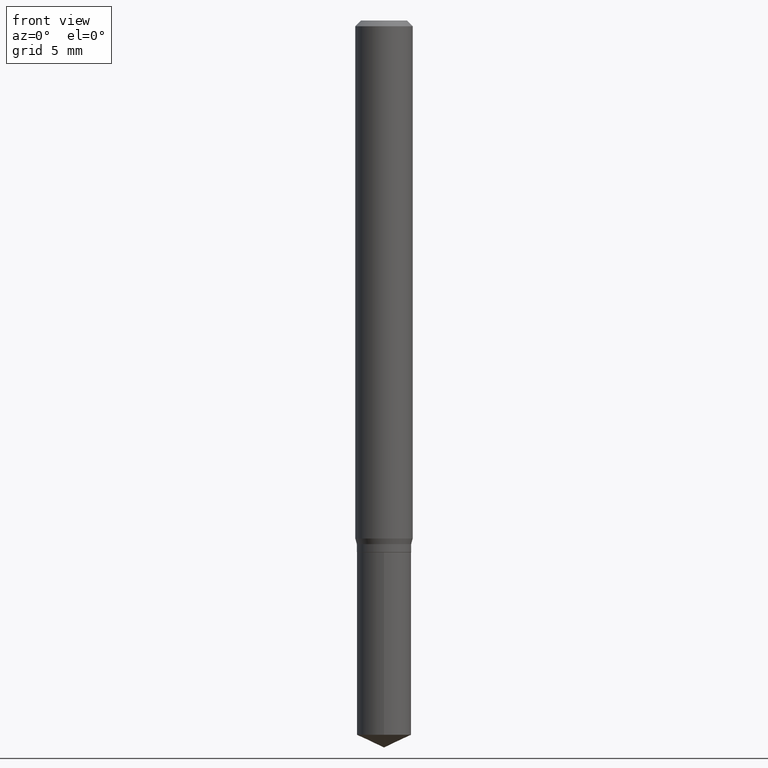
[diagram: clean part render]
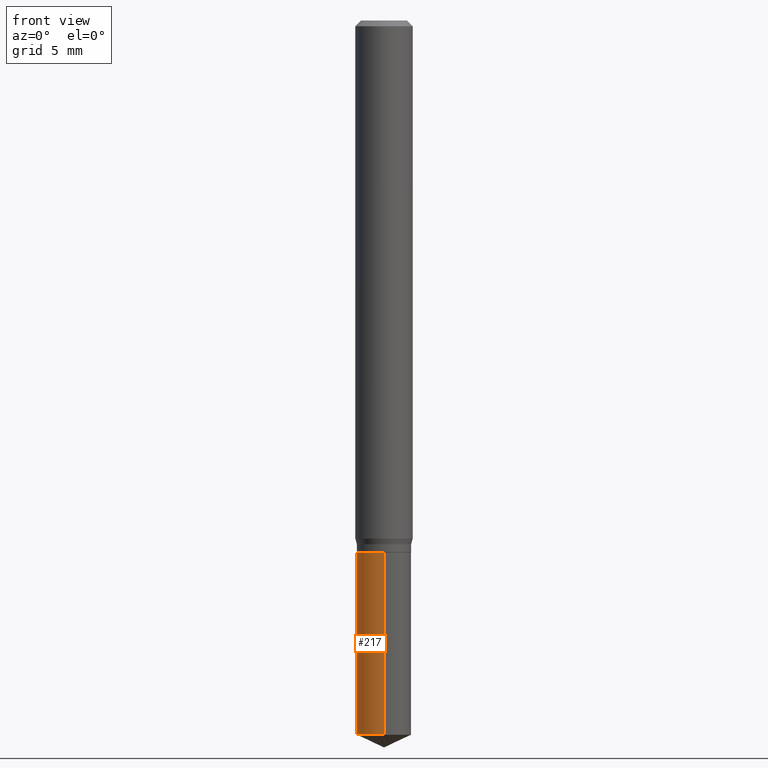
[diagram: same view with one face highlighted and labeled with its STEP entity id]
A machine part, front view. The second image highlights one B-rep face of the part: STEP entity #217.
In plain terms, the highlighted cylindrical surface (edge-blend (fillet) strip) has radius 1.4199 mm, axis along (-0, 0, 1).
Its self-contained STEP definition (entity closure, byte-faithful):
#21 = CYLINDRICAL_SURFACE ( 'NONE', #396, 0.05589999999999999830 ) ;
#48 = CARTESIAN_POINT ( 'NONE',  ( -3.903476136826355269E-16, -0.05590000000000382857, -1.094499999999999806 ) ) ;
#51 = EDGE_CURVE ( 'NONE', #156, #343, #213, .T. ) ;
#67 = CARTESIAN_POINT ( 'NONE',  ( 3.971933892899227145E-16, 0.05589999999999617497, -1.094500000000000028 ) ) ;
#104 = ORIENTED_EDGE ( 'NONE', *, *, #468, .F. ) ;
#105 = CARTESIAN_POINT ( 'NONE',  ( -3.903476136826355269E-16, -0.05590000000000382857, -1.094499999999999806 ) ) ;
#106 = VERTEX_POINT ( 'NONE', #356 ) ;
#119 = DIRECTION ( 'NONE',  ( -6.982962677686266711E-15, -1.000000000000000000, 4.887026822297430217E-15 ) ) ;
#124 = DIRECTION ( 'NONE',  ( -2.445458899330790108E-29, 3.491495526022433205E-15, 1.000000000000000000 ) ) ;
#154 = DIRECTION ( 'NONE',  ( -2.445458899330790108E-29, 3.491495526022433205E-15, 1.000000000000000000 ) ) ;
#156 = VERTEX_POINT ( 'NONE', #465 ) ;
#159 = AXIS2_PLACEMENT_3D ( 'NONE', #243, #154, #119 ) ;
#175 = DIRECTION ( 'NONE',  ( -2.445458899330790108E-29, 3.491495526022433205E-15, 1.000000000000000000 ) ) ;
#204 = FACE_OUTER_BOUND ( 'NONE', #434, .T. ) ;
#206 = DIRECTION ( 'NONE',  ( -2.445458899330790108E-29, 3.491495526022433599E-15, 1.000000000000000000 ) ) ;
#212 = LINE ( 'NONE', #67, #254 ) ;
#213 = CIRCLE ( 'NONE', #159, 0.05589999999999999830 ) ;
#217 = ADVANCED_FACE ( 'NONE', ( #204 ), #21, .T. ) ;
#223 = VERTEX_POINT ( 'NONE', #105 ) ;
#243 = CARTESIAN_POINT ( 'NONE',  ( 3.594917108064294663E-29, -5.132599518001554122E-15, -1.470033401909135673 ) ) ;
#253 = DIRECTION ( 'NONE',  ( -6.982962677686266711E-15, -1.000000000000000000, 2.443513411148715109E-15 ) ) ;
#254 = VECTOR ( 'NONE', #292, 39.37007874015748143 ) ;
#268 = DIRECTION ( 'NONE',  ( -6.982962677686266711E-15, -1.000000000000000000, 2.443513411148715109E-15 ) ) ;
#292 = DIRECTION ( 'NONE',  ( -2.445458899330790108E-29, 3.491495526022433599E-15, 1.000000000000000000 ) ) ;
#300 = EDGE_CURVE ( 'NONE', #156, #106, #212, .T. ) ;
#306 = AXIS2_PLACEMENT_3D ( 'NONE', #360, #124, #268 ) ;
#343 = VERTEX_POINT ( 'NONE', #373 ) ;
#356 = CARTESIAN_POINT ( 'NONE',  ( 3.971933892899319836E-16, 0.05589999999999617497, -1.094500000000000028 ) ) ;
#359 = CARTESIAN_POINT ( 'NONE',  ( 2.676565608369631794E-29, -3.821426325363822773E-15, -1.094499999999999806 ) ) ;
#360 = CARTESIAN_POINT ( 'NONE',  ( 2.676565608369631794E-29, -3.821426325363822773E-15, -1.094499999999999806 ) ) ;
#373 = CARTESIAN_POINT ( 'NONE',  ( -3.903476136826264057E-16, -0.05590000000000514696, -1.470033401909135451 ) ) ;
#393 = LINE ( 'NONE', #48, #403 ) ;
#396 = AXIS2_PLACEMENT_3D ( 'NONE', #359, #175, #253 ) ;
#403 = VECTOR ( 'NONE', #206, 39.37007874015748143 ) ;
#414 = ORIENTED_EDGE ( 'NONE', *, *, #300, .F. ) ;
#422 = ORIENTED_EDGE ( 'NONE', *, *, #51, .T. ) ;
#434 = EDGE_LOOP ( 'NONE', ( #414, #422, #483, #104 ) ) ;
#435 = CIRCLE ( 'NONE', #306, 0.05589999999999999830 ) ;
#455 = EDGE_CURVE ( 'NONE', #343, #223, #393, .T. ) ;
#465 = CARTESIAN_POINT ( 'NONE',  ( 3.971933892899320329E-16, 0.05589999999999487740, -1.470033401909136117 ) ) ;
#468 = EDGE_CURVE ( 'NONE', #106, #223, #435, .T. ) ;
#483 = ORIENTED_EDGE ( 'NONE', *, *, #455, .T. ) ;